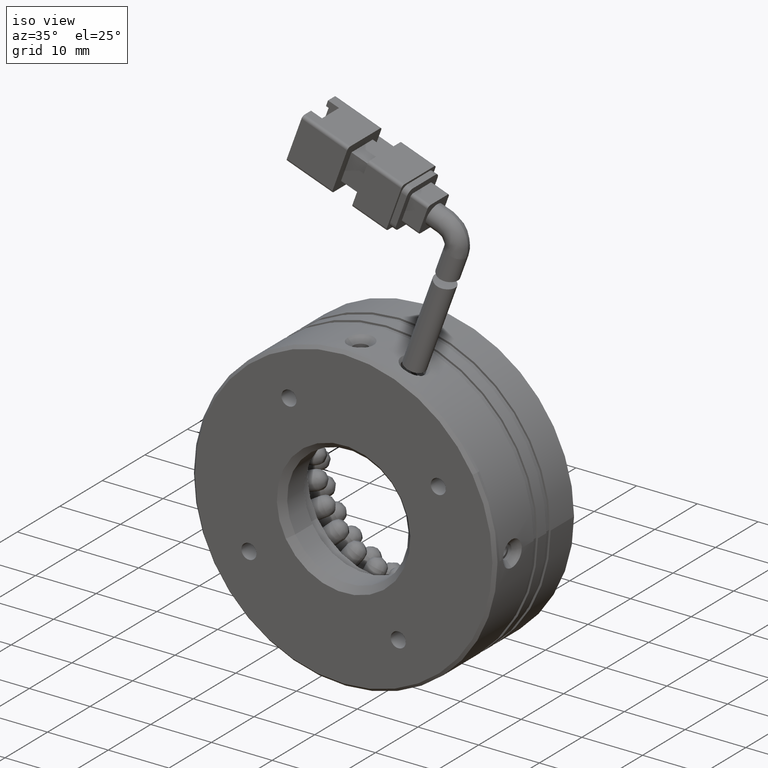
[diagram: clean part render]
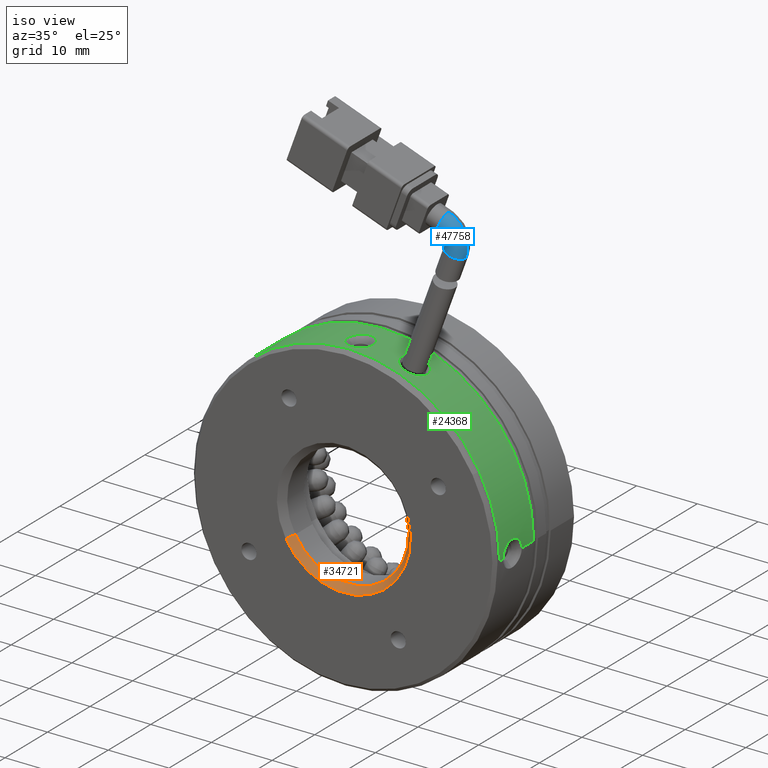
[diagram: same view with three faces highlighted in distinct colors, each labeled with its STEP entity id]
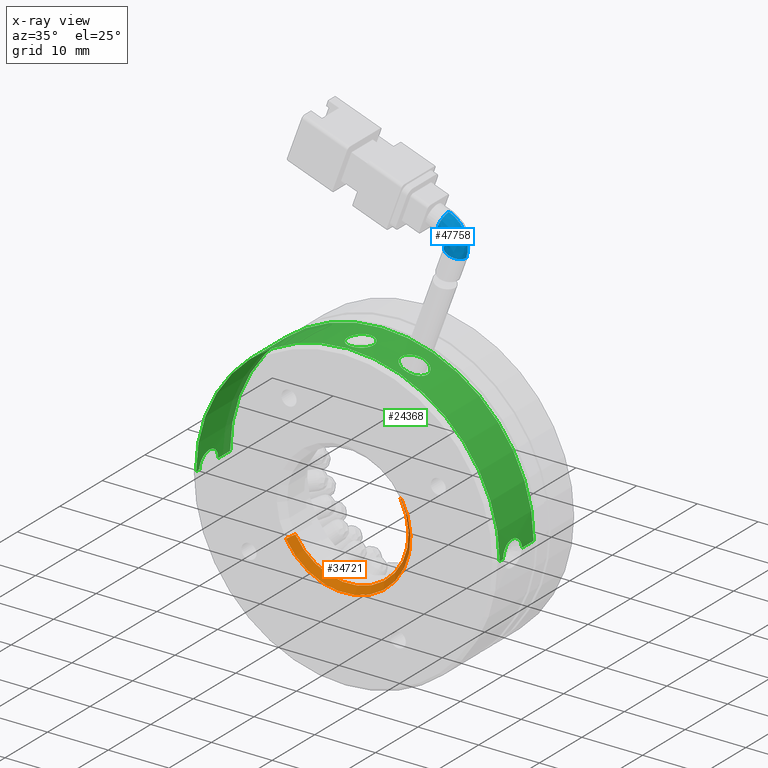
[diagram: x-ray of the same camera — body ghosted, the three highlighted faces saturated]
A machine part, iso view with three faces highlighted in distinct colors.
The next image is the same camera in x-ray (body ghosted, the three faces saturated) — at least one of them is partly hidden behind the body in this view.
Their STEP definitions:

[orange] entity #34721 — the highlighted conical surface has half-angle 45 deg.
#2085 = CONICAL_SURFACE ( 'NONE', #17731, 10.99999999999999600, 0.7853981633974447300 ) ;
#3979 = VECTOR ( 'NONE', #42289, 1000.000000000000100 ) ;
#6963 = DIRECTION ( 'NONE',  ( 1.337821311134206300E-016, -1.000000000000000000, 1.129945806975177200E-016 ) ) ;
#7641 = EDGE_CURVE ( 'NONE', #18842, #27068, #15041, .T. ) ;
#10564 = CARTESIAN_POINT ( 'NONE',  ( -103.2526317301170500, 2.127531206657415900, -5.500000000000015100 ) ) ;
#10644 = CARTESIAN_POINT ( 'NONE',  ( -102.3866063263326300, 3.127531206657413200, -5.000000000000020400 ) ) ;
#11988 = ORIENTED_EDGE ( 'NONE', *, *, #48102, .T. ) ;
#12030 = CARTESIAN_POINT ( 'NONE',  ( -84.20007284685941300, 2.127531206657418600, 5.500000000000005300 ) ) ;
#14493 = CARTESIAN_POINT ( 'NONE',  ( -84.20007284685941300, 2.127531206657422100, 5.500000000000003600 ) ) ;
#15041 = CIRCLE ( 'NONE', #48895, 10.00000000000000900 ) ;
#15258 = DIRECTION ( 'NONE',  ( 1.193513842782216900E-016, -1.000000000000000000, 5.913830031739125400E-017 ) ) ;
#15487 = EDGE_CURVE ( 'NONE', #38138, #45460, #28268, .T. ) ;
#16470 = DIRECTION ( 'NONE',  ( -0.6123724356957919200, -0.7071067811865501300, -0.3535533905932731200 ) ) ;
#17731 = AXIS2_PLACEMENT_3D ( 'NONE', #22787, #6963, #50255 ) ;
#18842 = VERTEX_POINT ( 'NONE', #10644 ) ;
#19337 = CARTESIAN_POINT ( 'NONE',  ( -85.06609825064384700, 3.127531206657415900, 5.000000000000009800 ) ) ;
#22097 = ORIENTED_EDGE ( 'NONE', *, *, #15487, .T. ) ;
#22787 = CARTESIAN_POINT ( 'NONE',  ( -93.72635228848822900, 2.127531206657420300, -6.071532165918824800E-015 ) ) ;
#23386 = DIRECTION ( 'NONE',  ( 0.8660254037844379300, 1.182766006347823100E-016, 0.5000000000000010000 ) ) ;
#23718 = CARTESIAN_POINT ( 'NONE',  ( -93.72635228848822900, 2.127531206657417200, -6.071532165918824800E-015 ) ) ;
#24117 = CARTESIAN_POINT ( 'NONE',  ( -93.72635228848822900, 3.127531206657414600, -6.132764505876192400E-015 ) ) ;
#26673 = FACE_OUTER_BOUND ( 'NONE', #42869, .T. ) ;
#27068 = VERTEX_POINT ( 'NONE', #19337 ) ;
#27166 = DIRECTION ( 'NONE',  ( 0.8660254037844379300, 2.602085213965208200E-016, 0.5000000000000011100 ) ) ;
#27635 = EDGE_CURVE ( 'NONE', #27068, #45460, #45810, .T. ) ;
#28268 = CIRCLE ( 'NONE', #34228, 10.99999999999999800 ) ;
#34228 = AXIS2_PLACEMENT_3D ( 'NONE', #23718, #15258, #23386 ) ;
#34556 = VECTOR ( 'NONE', #16470, 1000.000000000000000 ) ;
#34721 = ADVANCED_FACE ( 'NONE', ( #26673 ), #2085, .F. ) ;
#38138 = VERTEX_POINT ( 'NONE', #10564 ) ;
#41051 = ORIENTED_EDGE ( 'NONE', *, *, #27635, .F. ) ;
#42289 = DIRECTION ( 'NONE',  ( 0.6123724356957920300, -0.7071067811865500200, 0.3535533905932732900 ) ) ;
#42869 = EDGE_LOOP ( 'NONE', ( #49453, #11988, #22097, #41051 ) ) ;
#45006 = LINE ( 'NONE', #45845, #34556 ) ;
#45460 = VERTEX_POINT ( 'NONE', #12030 ) ;
#45810 = LINE ( 'NONE', #14493, #3979 ) ;
#45845 = CARTESIAN_POINT ( 'NONE',  ( -103.2526317301170500, 2.127531206657419000, -5.500000000000013300 ) ) ;
#46577 = DIRECTION ( 'NONE',  ( 1.229783673277243400E-016, -1.000000000000000000, 6.123233995736773400E-017 ) ) ;
#48102 = EDGE_CURVE ( 'NONE', #18842, #38138, #45006, .T. ) ;
#48895 = AXIS2_PLACEMENT_3D ( 'NONE', #24117, #46577, #27166 ) ;
#49453 = ORIENTED_EDGE ( 'NONE', *, *, #7641, .F. ) ;
#50255 = DIRECTION ( 'NONE',  ( 0.8660254037844380400, 1.577021341797097800E-016, 0.5000000000000010000 ) ) ;

[blue] entity #47758 — the highlighted face is a freeform B-spline surface patch.
#356 = CARTESIAN_POINT ( 'NONE',  ( -75.73931763601976300, 6.627531206657415000, 44.30231385031966300 ) ) ;
#538 = CARTESIAN_POINT ( 'NONE',  ( -79.97990792520850800, 6.627531206657412400, 42.88470318618579600 ) ) ;
#1962 = FACE_OUTER_BOUND ( 'NONE', #17838, .T. ) ;
#3110 = ORIENTED_EDGE ( 'NONE', *, *, #50770, .F. ) ;
#4115 = CARTESIAN_POINT ( 'NONE',  ( -79.52992802039396700, 6.627531206657415900, 47.77576831407594000 ) ) ;
#4288 = CARTESIAN_POINT ( 'NONE',  ( -79.52992802039396700, 3.127531206657413700, 47.77576831407595400 ) ) ;
#4488 = DIRECTION ( 'NONE',  ( 1.050341619794772700E-016, 1.000000000000000000, -3.251469816159421900E-016 ) ) ;
#4837 = CARTESIAN_POINT ( 'NONE',  ( -79.97990792520850800, 6.627531206657412400, 42.88470318618579600 ) ) ;
#6942 = AXIS2_PLACEMENT_3D ( 'NONE', #44476, #20857, #48366 ) ;
#7364 = VERTEX_POINT ( 'NONE', #4837 ) ;
#8209 = CARTESIAN_POINT ( 'NONE',  ( -75.73931763601976300, 3.127531206657411900, 44.30231385031967100 ) ) ;
#11381 = EDGE_CURVE ( 'NONE', #18551, #22056, #25127, .T. ) ;
#11509 = DIRECTION ( 'NONE',  ( 0.9396926207859074300, 0.0000000000000000000, -0.3420201433256714900 ) ) ;
#11678 = DIRECTION ( 'NONE',  ( 0.3420201433256694300, 2.696144201609998500E-016, 0.9396926207859083200 ) ) ;
#11733 = CARTESIAN_POINT ( 'NONE',  ( -78.33544583883316600, 6.627531206657413200, 42.28616793536588100 ) ) ;
#11986 = AXIS2_PLACEMENT_3D ( 'NONE', #16204, #22036, #49511 ) ;
#12145 = CARTESIAN_POINT ( 'NONE',  ( -80.72699852203379600, 3.127531206657411000, 44.48684414132526400 ) ) ;
#12898 = CIRCLE ( 'NONE', #29293, 4.749999999999990200 ) ;
#12991 =( BOUNDED_SURFACE ( )  B_SPLINE_SURFACE ( 3, 3, ( 
 ( #4115, #23872, #356, #27853 ),
 ( #4288, #31819, #8209, #35798 ),
 ( #12145, #39743, #16098, #43701 ),
 ( #20068, #47594, #24051, #538 ) ),
 .UNSPECIFIED., .F., .F., .F. ) 
 B_SPLINE_SURFACE_WITH_KNOTS ( ( 4, 4 ),
 ( 4, 4 ),
 ( 0.0000000000000000000, 1.000000000000000000 ),
 ( 0.0000000000000000000, 1.000000000000000000 ),
 .UNSPECIFIED. ) 
 GEOMETRIC_REPRESENTATION_ITEM ( )  RATIONAL_B_SPLINE_SURFACE ( (
 ( 1.000000000000000000, 0.8047378541243640500, 0.8047378541243640500, 1.000000000000000000),
 ( 0.3333333333333330400, 0.2682459513747877900, 0.2682459513747877900, 0.3333333333333330400),
 ( 0.3333333333333330400, 0.2682459513747877900, 0.2682459513747877900, 0.3333333333333330400),
 ( 1.000000000000000000, 0.8047378541243640500, 0.8047378541243640500, 1.000000000000000000) ) ) 
 REPRESENTATION_ITEM ( '' )  SURFACE ( )  );
#14442 = EDGE_CURVE ( 'NONE', #7364, #48800, #40266, .T. ) ;
#16098 = CARTESIAN_POINT ( 'NONE',  ( -79.72946947351427100, 3.127531206657410100, 43.57277717717888500 ) ) ;
#16204 = CARTESIAN_POINT ( 'NONE',  ( -80.12846327121388900, 6.627531206657396400, 46.13130622770058400 ) ) ;
#16984 = DIRECTION ( 'NONE',  ( 1.050341619794772700E-016, 1.000000000000000000, -3.251469816159421900E-016 ) ) ;
#17340 = AXIS2_PLACEMENT_3D ( 'NONE', #11733, #11678, #11509 ) ;
#17838 = EDGE_LOOP ( 'NONE', ( #37360, #43868, #45073, #50772, #3110 ) ) ;
#18551 = VERTEX_POINT ( 'NONE', #24105 ) ;
#20068 = CARTESIAN_POINT ( 'NONE',  ( -80.72699852203379600, 6.627531206657413200, 44.48684414132527100 ) ) ;
#20857 = DIRECTION ( 'NONE',  ( 0.3420201433256694300, 2.696144201609998500E-016, 0.9396926207859083200 ) ) ;
#22036 = DIRECTION ( 'NONE',  ( -0.9396926207859080900, -1.543954929654824700E-016, 0.3420201433256696000 ) ) ;
#22056 = VERTEX_POINT ( 'NONE', #35379 ) ;
#23872 = CARTESIAN_POINT ( 'NONE',  ( -76.91524685462025000, 6.627531206657415000, 46.82410219763784900 ) ) ;
#24051 = CARTESIAN_POINT ( 'NONE',  ( -79.72946947351427100, 6.627531206657413200, 43.57277717717888500 ) ) ;
#24105 = CARTESIAN_POINT ( 'NONE',  ( -80.72699852203379600, 6.627531206657413200, 44.48684414132525700 ) ) ;
#25127 = CIRCLE ( 'NONE', #11986, 1.749999999999996200 ) ;
#26294 = CIRCLE ( 'NONE', #45314, 1.249999999999993300 ) ;
#26644 = EDGE_CURVE ( 'NONE', #18551, #7364, #26294, .T. ) ;
#27620 = CARTESIAN_POINT ( 'NONE',  ( -76.69098375245783900, 6.627531206657413200, 41.68763268454596000 ) ) ;
#27853 = CARTESIAN_POINT ( 'NONE',  ( -76.69098375245785300, 6.627531206657413200, 41.68763268454595300 ) ) ;
#28057 = CARTESIAN_POINT ( 'NONE',  ( -81.15452370119088200, 6.627531206657414100, 43.31222836534288900 ) ) ;
#28923 = CIRCLE ( 'NONE', #6942, 1.749999999999998700 ) ;
#28963 = VERTEX_POINT ( 'NONE', #27620 ) ;
#29293 = AXIS2_PLACEMENT_3D ( 'NONE', #28057, #4488, #32012 ) ;
#31819 = CARTESIAN_POINT ( 'NONE',  ( -76.91524685462026400, 3.127531206657413200, 46.82410219763785600 ) ) ;
#32012 = DIRECTION ( 'NONE',  ( 0.9396926207859077600, -1.826024711554537600E-016, -0.3420201433256706600 ) ) ;
#34523 = CARTESIAN_POINT ( 'NONE',  ( -78.33544583883315200, 4.877531206657419500, 42.28616793536587400 ) ) ;
#35379 = CARTESIAN_POINT ( 'NONE',  ( -79.52992802039395300, 6.627531206657415900, 47.77576831407592600 ) ) ;
#35798 = CARTESIAN_POINT ( 'NONE',  ( -76.69098375245783900, 3.127531206657411000, 41.68763268454594600 ) ) ;
#37360 = ORIENTED_EDGE ( 'NONE', *, *, #11381, .F. ) ;
#37653 = EDGE_CURVE ( 'NONE', #48800, #28963, #28923, .T. ) ;
#39743 = CARTESIAN_POINT ( 'NONE',  ( -80.03892453104072000, 3.127531206657410600, 44.23640568963104200 ) ) ;
#40266 = CIRCLE ( 'NONE', #17340, 1.749999999999998700 ) ;
#40622 = CARTESIAN_POINT ( 'NONE',  ( -81.15452370119088200, 6.627531206657413200, 43.31222836534288900 ) ) ;
#43701 = CARTESIAN_POINT ( 'NONE',  ( -79.97990792520850800, 3.127531206657410100, 42.88470318618579600 ) ) ;
#43868 = ORIENTED_EDGE ( 'NONE', *, *, #26644, .T. ) ;
#44476 = CARTESIAN_POINT ( 'NONE',  ( -78.33544583883316600, 6.627531206657413200, 42.28616793536588100 ) ) ;
#44574 = DIRECTION ( 'NONE',  ( 0.9396926207859085400, 0.0000000000000000000, -0.3420201433256682700 ) ) ;
#45073 = ORIENTED_EDGE ( 'NONE', *, *, #14442, .T. ) ;
#45314 = AXIS2_PLACEMENT_3D ( 'NONE', #40622, #16984, #44574 ) ;
#47594 = CARTESIAN_POINT ( 'NONE',  ( -80.03892453104070600, 6.627531206657414100, 44.23640568963102700 ) ) ;
#47758 = ADVANCED_FACE ( 'NONE', ( #1962 ), #12991, .T. ) ;
#48366 = DIRECTION ( 'NONE',  ( 0.9396926207859074300, 0.0000000000000000000, -0.3420201433256714900 ) ) ;
#48800 = VERTEX_POINT ( 'NONE', #34523 ) ;
#49511 = DIRECTION ( 'NONE',  ( 0.3420201433256679900, 0.0000000000000000000, 0.9396926207859087600 ) ) ;
#50770 = EDGE_CURVE ( 'NONE', #22056, #28963, #12898, .T. ) ;
#50772 = ORIENTED_EDGE ( 'NONE', *, *, #37653, .T. ) ;

[green] entity #24368 — the highlighted cylindrical surface (partial cylindrical patch) has radius 25 mm, axis along (-0, 1, -0).
#109 = FACE_BOUND ( 'NONE', #17206, .T. ) ;
#582 = B_SPLINE_CURVE_WITH_KNOTS ( 'NONE', 3,
 ( #45241, #9800, #2115, #29606, #6028, #33574, #9970, #37576, #13890, #41527, #17882, #45401, #21846, #49323, #25806, #2276 ),
 .UNSPECIFIED., .F., .F.,
 ( 4, 2, 2, 2, 2, 2, 2, 4 ),
 ( 0.003372809311427478000, 0.003794751688006890000, 0.004216694064586302400, 0.004638636441165714000, 0.005060578817745126400, 0.005482521194324538800, 0.005904463570903950400, 0.006748348324062772600 ),
 .UNSPECIFIED. ) ;
#660 = VERTEX_POINT ( 'NONE', #46981 ) ;
#808 = ORIENTED_EDGE ( 'NONE', *, *, #48741, .F. ) ;
#935 = CARTESIAN_POINT ( 'NONE',  ( -68.72635228848821500, 24.01734612509121900, 3.061616997868385400E-015 ) ) ;
#1002 = CARTESIAN_POINT ( 'NONE',  ( -95.41755569517926000, 4.804040368719905800, 24.94284510514802000 ) ) ;
#1161 = CARTESIAN_POINT ( 'NONE',  ( -94.42076301022818500, 4.045050435432641800, 24.99068650074069700 ) ) ;
#1268 = CARTESIAN_POINT ( 'NONE',  ( -118.6924803183910900, 7.871436744697787100, 1.315120900708605500 ) ) ;
#1381 = CARTESIAN_POINT ( 'NONE',  ( -87.33680741832448300, 6.629950924454618600, 24.16968589684535100 ) ) ;
#1851 = CARTESIAN_POINT ( 'NONE',  ( -92.31538171877463100, 4.485464639422760400, 24.96034158929078100 ) ) ;
#2028 = CARTESIAN_POINT ( 'NONE',  ( -93.58354791311232600, 3.927551101122267200, 24.99999839088628000 ) ) ;
#2115 = CARTESIAN_POINT ( 'NONE',  ( -118.6382132408280900, 5.845050098752269100, 2.097583008050207800 ) ) ;
#2245 = CARTESIAN_POINT ( 'NONE',  ( -91.61561581704414400, 6.127531206657373300, 24.91073647141161700 ) ) ;
#2276 = CARTESIAN_POINT ( 'NONE',  ( -118.7263522884882400, 3.927531206675423100, 3.188767033409472800E-028 ) ) ;
#2313 = CARTESIAN_POINT ( 'NONE',  ( -68.79411095219799700, 5.042451283368322400, 1.840933599726173100 ) ) ;
#2386 = CARTESIAN_POINT ( 'NONE',  ( -118.7263522884882600, 24.01734612509121200, 0.0000000000000000000 ) ) ;
#2484 = ORIENTED_EDGE ( 'NONE', *, *, #38600, .T. ) ;
#2644 = CARTESIAN_POINT ( 'NONE',  ( -94.28694921743560500, 8.253471317761080800, 24.99409371080713200 ) ) ;
#2802 = CARTESIAN_POINT ( 'NONE',  ( -91.71950165400402000, 6.823284365005923400, 24.91937348563566700 ) ) ;
#3002 = CARTESIAN_POINT ( 'NONE',  ( -68.81561581707664700, 6.269895215091832300, 2.110736471444481400 ) ) ;
#3113 = CARTESIAN_POINT ( 'NONE',  ( -87.04164505155772200, 7.749920134018435800, 24.08986700135214700 ) ) ;
#3295 = CARTESIAN_POINT ( 'NONE',  ( -84.11996627386311300, 8.571423713469167500, 23.08229325377325500 ) ) ;
#3512 = CARTESIAN_POINT ( 'NONE',  ( -68.81449133615224400, 6.410012314569372400, 2.097583008096889600 ) ) ;
#3677 = CARTESIAN_POINT ( 'NONE',  ( -68.72635228848821500, 8.327531206695757900, 3.061616997868413400E-015 ) ) ;
#3925 = ORIENTED_EDGE ( 'NONE', *, *, #40596, .T. ) ;
#4146 = CARTESIAN_POINT ( 'NONE',  ( -91.68070329506356600, 5.567842280065710800, 24.91617939211820600 ) ) ;
#4227 = CARTESIAN_POINT ( 'NONE',  ( -93.16536899108027100, 4.001703644451781700, 24.99408488482686500 ) ) ;
#4345 = VECTOR ( 'NONE', #9609, 1000.000000000000000 ) ;
#4646 = EDGE_CURVE ( 'NONE', #660, #49710, #45948, .T. ) ;
#4863 = CARTESIAN_POINT ( 'NONE',  ( -91.61561581704414400, 6.127531206657373300, 24.91073647141161700 ) ) ;
#5029 = EDGE_CURVE ( 'NONE', #34121, #18861, #39786, .T. ) ;
#5256 = CARTESIAN_POINT ( 'NONE',  ( -95.56805473143126100, 5.043854783285665300, 24.93218448138607000 ) ) ;
#5589 = LINE ( 'NONE', #5682, #4345 ) ;
#5645 = DIRECTION ( 'NONE',  ( -1.224646799147351700E-016, 1.000000000000000000, -0.0000000000000000000 ) ) ;
#5682 = CARTESIAN_POINT ( 'NONE',  ( -118.7263522884882600, 24.01734612509121200, 0.0000000000000000000 ) ) ;
#6028 = CARTESIAN_POINT ( 'NONE',  ( -118.6457112575120900, 5.432193008407319100, 2.007039503046805300 ) ) ;
#6235 = CARTESIAN_POINT ( 'NONE',  ( -68.80692750573577100, 5.429814075974595900, 2.006215502764190800 ) ) ;
#6407 = B_SPLINE_CURVE_WITH_KNOTS ( 'NONE', 3,
 ( #30483, #14755, #46273, #22727, #50204, #26696, #3113, #30656, #7065, #34609, #11019, #38617, #14936, #42549, #18915, #46437, #22901, #50359, #26862, #3295, #30819, #7240, #34787, #11189, #38775, #15092, #42721, #19073, #46600, #23056 ),
 .UNSPECIFIED., .F., .F.,
 ( 4, 2, 2, 2, 2, 2, 2, 2, 2, 2, 2, 2, 2, 2, 4 ),
 ( 1.734723475976807100E-018, 0.0004389873591135950400, 0.0008779747182271883400, 0.001316962077340781600, 0.001755949436454377300, 0.002633924154681541200, 0.003072911513795102600, 0.003511898872908664900, 0.003950886232022226800, 0.004389873591135789500, 0.005267848309362945300, 0.005706835668476525400, 0.006145823027590102900, 0.006584810386703681200, 0.007023797745817257800 ),
 .UNSPECIFIED. ) ;
#6570 = CARTESIAN_POINT ( 'NONE',  ( -93.86864455055138000, 8.327545891568814100, 25.00000118774757500 ) ) ;
#6600 = CARTESIAN_POINT ( 'NONE',  ( -68.72635228848821500, 24.01734612509121900, 3.061616997868385400E-015 ) ) ;
#6741 = CARTESIAN_POINT ( 'NONE',  ( -91.62855500295367500, 6.408519929583411200, 24.91184293559467000 ) ) ;
#6767 = VERTEX_POINT ( 'NONE', #38476 ) ;
#7065 = CARTESIAN_POINT ( 'NONE',  ( -86.78828577320274500, 8.105066516053126300, 24.01820643902865300 ) ) ;
#7240 = CARTESIAN_POINT ( 'NONE',  ( -83.60042557912824200, 8.102561220144282900, 22.85775158034288500 ) ) ;
#7451 = CARTESIAN_POINT ( 'NONE',  ( -68.80699331946800600, 6.822869404924259300, 2.007039503091733800 ) ) ;
#7504 = ORIENTED_EDGE ( 'NONE', *, *, #28109, .T. ) ;
#8634 = CARTESIAN_POINT ( 'NONE',  ( -118.7263522884882400, 8.327531206639418900, 3.192939869231462800E-028 ) ) ;
#9276 = ORIENTED_EDGE ( 'NONE', *, *, #41670, .T. ) ;
#9609 = DIRECTION ( 'NONE',  ( -1.224646799147351700E-016, 1.000000000000000000, -0.0000000000000000000 ) ) ;
#9800 = CARTESIAN_POINT ( 'NONE',  ( -118.6370887599037600, 5.985167198227618000, 2.110736471397629100 ) ) ;
#9970 = CARTESIAN_POINT ( 'NONE',  ( -118.6585734488815100, 5.043048222521497000, 1.841179615182169500 ) ) ;
#10176 = CARTESIAN_POINT ( 'NONE',  ( -68.81449279918466300, 5.844831605414477800, 2.097602845475807300 ) ) ;
#10201 = CARTESIAN_POINT ( 'NONE',  ( -95.83708875993232800, 6.127531206657471900, 24.91073647141161700 ) ) ;
#10258 = EDGE_CURVE ( 'NONE', #17682, #31354, #34462, .T. ) ;
#10337 = CARTESIAN_POINT ( 'NONE',  ( -95.77198279765259800, 6.687298464014045200, 24.91618091737486300 ) ) ;
#10499 = CARTESIAN_POINT ( 'NONE',  ( -93.44359130388576800, 8.312592236049319200, 24.99878025384049700 ) ) ;
#10680 = CARTESIAN_POINT ( 'NONE',  ( -91.61561581704414400, 6.127531206657373300, 24.91073647141161700 ) ) ;
#10785 = ORIENTED_EDGE ( 'NONE', *, *, #10258, .T. ) ;
#11019 = CARTESIAN_POINT ( 'NONE',  ( -86.24490691949083000, 8.572998441941823700, 23.85584937046340300 ) ) ;
#11189 = CARTESIAN_POINT ( 'NONE',  ( -83.36297287557536600, 7.750701235911666500, 22.75098367767485300 ) ) ;
#11400 = CARTESIAN_POINT ( 'NONE',  ( -68.79413112809801600, 7.212014190819735900, 1.841179615223758500 ) ) ;
#12619 = CARTESIAN_POINT ( 'NONE',  ( -94.28413246639993900, 4.000791936447630100, 24.99415643645258500 ) ) ;
#12971 = CARTESIAN_POINT ( 'NONE',  ( -95.04219169490599500, 4.384176510076571300, 24.96609059186189200 ) ) ;
#13890 = CARTESIAN_POINT ( 'NONE',  ( -118.6749917680693300, 4.691654593888513200, 1.604594212436151000 ) ) ;
#13931 = CARTESIAN_POINT ( 'NONE',  ( -68.72756803637031500, 3.942421126342650500, 0.2823635816201177700 ) ) ;
#14093 = CARTESIAN_POINT ( 'NONE',  ( -68.81561581707664700, 6.127531206657424800, 2.110736471444564900 ) ) ;
#14262 = CARTESIAN_POINT ( 'NONE',  ( -95.57917640679110600, 7.218612631283259700, 24.93146004079121900 ) ) ;
#14438 = CARTESIAN_POINT ( 'NONE',  ( -93.03157885068502300, 8.209878733593265900, 24.99067626400632800 ) ) ;
#14755 = CARTESIAN_POINT ( 'NONE',  ( -87.33664801069824100, 6.778042392264585400, 24.16964375553723300 ) ) ;
#14936 = CARTESIAN_POINT ( 'NONE',  ( -85.72240214135408100, 8.778617706307708000, 23.68454116551253500 ) ) ;
#15092 = CARTESIAN_POINT ( 'NONE',  ( -83.19254770072755900, 7.350794394039612100, 22.67250074578843000 ) ) ;
#15180 = VERTEX_POINT ( 'NONE', #34682 ) ;
#15320 = CARTESIAN_POINT ( 'NONE',  ( -68.77771280890948400, 7.563407819461589900, 1.604594212472916700 ) ) ;
#16861 = CARTESIAN_POINT ( 'NONE',  ( -118.6585936247815700, 7.212611129920238000, 1.840933599684530000 ) ) ;
#17206 = EDGE_LOOP ( 'NONE', ( #25246, #17723 ) ) ;
#17297 = CARTESIAN_POINT ( 'NONE',  ( -83.15214845473639100, 6.046269434473349400, 22.65363295083733400 ) ) ;
#17399 = CARTESIAN_POINT ( 'NONE',  ( -83.09864368369765900, 6.333471411789538800, 22.62858109561124600 ) ) ;
#17682 = VERTEX_POINT ( 'NONE', #8634 ) ;
#17723 = ORIENTED_EDGE ( 'NONE', *, *, #36218, .T. ) ;
#17882 = CARTESIAN_POINT ( 'NONE',  ( -118.6924642036615600, 4.393918717303527000, 1.306300267451909100 ) ) ;
#17929 = CARTESIAN_POINT ( 'NONE',  ( -68.73565804171698800, 4.044951313940473800, 0.6941144659934298500 ) ) ;
#18262 = CARTESIAN_POINT ( 'NONE',  ( -95.13713167769839200, 7.769777895890481300, 24.96035248869997500 ) ) ;
#18415 = CARTESIAN_POINT ( 'NONE',  ( -92.41029706054646900, 7.870701904189262500, 24.96607882722543400 ) ) ;
#18440 = DIRECTION ( 'NONE',  ( -1.224646799147351700E-016, 1.000000000000000000, -0.0000000000000000000 ) ) ;
#18861 = VERTEX_POINT ( 'NONE', #10201 ) ;
#18915 = CARTESIAN_POINT ( 'NONE',  ( -85.31332034916481200, 8.847860074847725200, 23.54235349820583800 ) ) ;
#19073 = CARTESIAN_POINT ( 'NONE',  ( -83.09896418590717800, 6.924219570094661200, 22.62873189338169800 ) ) ;
#19082 = CARTESIAN_POINT ( 'NONE',  ( -83.08505199202423300, 6.479331727348905700, 22.62217337040090800 ) ) ;
#19187 = CARTESIAN_POINT ( 'NONE',  ( -86.79158323049536200, 5.153648217032443100, 24.01916263158314600 ) ) ;
#19253 = CARTESIAN_POINT ( 'NONE',  ( -86.48698994735080700, 4.845372392167083000, 23.92982270168879200 ) ) ;
#19295 = CARTESIAN_POINT ( 'NONE',  ( -68.76024037331647800, 7.861143696054492500, 1.306300267482225700 ) ) ;
#19361 = VERTEX_POINT ( 'NONE', #43264 ) ;
#19418 = CARTESIAN_POINT ( 'NONE',  ( -87.04204840703288000, 5.505984780709204600, 24.08997649966892100 ) ) ;
#19578 = CARTESIAN_POINT ( 'NONE',  ( -86.88227329017502100, 5.265265470101634400, 24.04507161143604300 ) ) ;
#19742 = CARTESIAN_POINT ( 'NONE',  ( -84.50022041854650500, 4.518637008608192400, 23.23568183060121900 ) ) ;
#20105 = CARTESIAN_POINT ( 'NONE',  ( -91.61561581704420100, 5.986349301309314100, 24.91073647141161700 ) ) ;
#20309 = CARTESIAN_POINT ( 'NONE',  ( -84.12262682616180600, 4.682392505180438900, 23.08337355982010700 ) ) ;
#20371 = CARTESIAN_POINT ( 'NONE',  ( -118.7263522884882400, 8.327531206639418900, 3.192939869231462800E-028 ) ) ;
#20392 = CARTESIAN_POINT ( 'NONE',  ( -83.89022532542077200, 4.845823466234396200, 22.98466133646030200 ) ) ;
#20477 = DIRECTION ( 'NONE',  ( -1.224646799147351700E-016, 1.000000000000000000, -0.0000000000000000000 ) ) ;
#20497 = CARTESIAN_POINT ( 'NONE',  ( -83.60184175914921000, 5.150918042863992200, 22.85837481400728400 ) ) ;
#20546 = CARTESIAN_POINT ( 'NONE',  ( -95.82414589639772400, 5.846502377881627400, 24.91184325304865900 ) ) ;
#20626 = EDGE_LOOP ( 'NONE', ( #48171, #9276, #2484, #32760, #33545, #39058, #808, #10785, #3925, #43730 ) ) ;
#20799 = CARTESIAN_POINT ( 'NONE',  ( -84.90223061649547300, 4.421050047055874900, 23.39135760749348600 ) ) ;
#20833 = CARTESIAN_POINT ( 'NONE',  ( -84.63336953714160400, 4.476503484211274800, 23.28816005371588800 ) ) ;
#20903 = CARTESIAN_POINT ( 'NONE',  ( -85.31430990603536200, 4.407261132010443600, 23.54270787747650200 ) ) ;
#20997 = FACE_OUTER_BOUND ( 'NONE', #20626, .T. ) ;
#21078 = CARTESIAN_POINT ( 'NONE',  ( -85.03840751936765200, 4.407192542060161400, 23.44229440428320300 ) ) ;
#21185 = CARTESIAN_POINT ( 'NONE',  ( -87.22281711433801400, 5.906331262598176800, 24.13933197386658600 ) ) ;
#21352 = CARTESIAN_POINT ( 'NONE',  ( -87.11165026619258400, 5.636688812678771800, 24.10910689059601700 ) ) ;
#21419 = CARTESIAN_POINT ( 'NONE',  ( -87.32228527316317500, 6.333404769372408300, 24.16586027619340600 ) ) ;
#21604 = CARTESIAN_POINT ( 'NONE',  ( -87.26504379565439300, 6.045648733099382900, 24.15061841414646400 ) ) ;
#21693 = ORIENTED_EDGE ( 'NONE', *, *, #5029, .T. ) ;
#21705 = CARTESIAN_POINT ( 'NONE',  ( -83.51423750948360700, 5.263910532980309800, 22.81928377081307600 ) ) ;
#21770 = CARTESIAN_POINT ( 'NONE',  ( -83.36173132031292700, 5.506490377017349200, 22.75042048531231500 ) ) ;
#21846 = CARTESIAN_POINT ( 'NONE',  ( -118.7085329280896700, 4.159167402466786200, 0.9524527138401175400 ) ) ;
#21869 = CARTESIAN_POINT ( 'NONE',  ( -83.29750428043200800, 5.634475814152168000, 22.72096961472538000 ) ) ;
#21890 = CARTESIAN_POINT ( 'NONE',  ( -68.76022425858694500, 4.383625668573731800, 1.315120900739229500 ) ) ;
#21921 = CARTESIAN_POINT ( 'NONE',  ( -92.64948257860783100, 4.230279839631365700, 24.97705779155072400 ) ) ;
#21944 = CARTESIAN_POINT ( 'NONE',  ( -83.19270894327858900, 5.903770515322413800, 22.67257570026687900 ) ) ;
#21983 = CARTESIAN_POINT ( 'NONE',  ( -118.7263522884882400, 3.927531206675423100, 3.188767033409472800E-028 ) ) ;
#22229 = CARTESIAN_POINT ( 'NONE',  ( -94.80294782571417000, 8.024953412684633100, 24.97706974139681800 ) ) ;
#22404 = CARTESIAN_POINT ( 'NONE',  ( -92.03503029489624500, 7.450855044804284500, 24.94283699925345800 ) ) ;
#22473 = VERTEX_POINT ( 'NONE', #50237 ) ;
#22727 = CARTESIAN_POINT ( 'NONE',  ( -87.26467088699743600, 7.210715803180141500, 24.15051868271291000 ) ) ;
#22901 = CARTESIAN_POINT ( 'NONE',  ( -84.89882246572617000, 8.833508304942432300, 23.39006787153558500 ) ) ;
#23056 = CARTESIAN_POINT ( 'NONE',  ( -83.08505178513435400, 6.627531206657422100, 22.62217327308146200 ) ) ;
#23281 = CARTESIAN_POINT ( 'NONE',  ( -68.74417164888763000, 8.095895010897667300, 0.9524527138625669100 ) ) ;
#23516 = CARTESIAN_POINT ( 'NONE',  ( -93.72635228848822900, 11.12753120665742100, 0.0000000000000000000 ) ) ;
#23904 = CARTESIAN_POINT ( 'NONE',  ( -85.72545806519509900, 4.477301606803441900, 23.68557105872243400 ) ) ;
#24015 = CARTESIAN_POINT ( 'NONE',  ( -85.45413319482719300, 4.421602602799162600, 23.59218039979739600 ) ) ;
#24083 = CARTESIAN_POINT ( 'NONE',  ( -86.24920391961778400, 4.684151611941949500, 23.85722717729795400 ) ) ;
#24179 = CARTESIAN_POINT ( 'NONE',  ( -92.02366102004438600, 4.796129873016677300, 24.94271042318918700 ) ) ;
#24199 = CARTESIAN_POINT ( 'NONE',  ( -85.85848821572328400, 4.518585589804635200, 23.73005423534304700 ) ) ;
#24315 = CARTESIAN_POINT ( 'NONE',  ( -87.33680741832448300, 6.629950924454618600, 24.16968589684535100 ) ) ;
#24361 = CARTESIAN_POINT ( 'NONE',  ( -118.7263522884882300, 8.327531206639431400, 0.1424047389252667300 ) ) ;
#24368 = ADVANCED_FACE ( 'NONE', ( #30252, #109, #20997 ), #35807, .T. ) ;
#24385 = CARTESIAN_POINT ( 'NONE',  ( -87.33696693877816100, 6.481754638743327100, 24.16972806798074900 ) ) ;
#25172 = B_SPLINE_CURVE_WITH_KNOTS ( 'NONE', 3,
 ( #30878, #3002, #3512, #31046, #7451, #34998, #11400, #38997, #15320, #42943, #19295, #46819, #23281, #50736, #27246, #3677 ),
 .UNSPECIFIED., .F., .F.,
 ( 4, 2, 2, 2, 2, 2, 2, 4 ),
 ( 0.003372809311508812300, 0.003794751688098414500, 0.004216694064688017100, 0.004638636441277618400, 0.005060578817867221500, 0.005482521194456824500, 0.005904463571046429300, 0.006748348324225638900 ),
 .UNSPECIFIED. ) ;
#25246 = ORIENTED_EDGE ( 'NONE', *, *, #4646, .T. ) ;
#25680 = CARTESIAN_POINT ( 'NONE',  ( -68.72635228848821500, 3.927531206619091300, 3.061616997868413400E-015 ) ) ;
#25806 = CARTESIAN_POINT ( 'NONE',  ( -118.7263522884882100, 3.927531206675408400, 0.2850822124977777100 ) ) ;
#25851 = CARTESIAN_POINT ( 'NONE',  ( -68.78345168282952200, 4.802917715021401100, 1.690385738774615500 ) ) ;
#26036 = CARTESIAN_POINT ( 'NONE',  ( -95.83708875993232800, 6.127531206657471900, 24.91073647141161700 ) ) ;
#26199 = CARTESIAN_POINT ( 'NONE',  ( -94.42040584408962900, 8.210167597723572200, 24.99069812628092200 ) ) ;
#26366 = CARTESIAN_POINT ( 'NONE',  ( -91.82164516464601400, 7.085472786383225400, 24.92738885559649000 ) ) ;
#26641 = AXIS2_PLACEMENT_3D ( 'NONE', #29225, #5645, #33180 ) ;
#26696 = CARTESIAN_POINT ( 'NONE',  ( -87.10981288713267600, 7.622079490759090500, 24.10860313797573100 ) ) ;
#26862 = CARTESIAN_POINT ( 'NONE',  ( -84.50071136166872100, 8.736684375681928600, 23.23588341376730800 ) ) ;
#27024 = CARTESIAN_POINT ( 'NONE',  ( -83.08505178513435400, 6.627531206657422100, 22.62217327308146200 ) ) ;
#27246 = CARTESIAN_POINT ( 'NONE',  ( -68.72635228848820100, 8.327531206695715200, 0.2850822125046012500 ) ) ;
#27469 = DIRECTION ( 'NONE',  ( -1.000000000000000000, -1.387778780781444400E-016, 0.0000000000000000000 ) ) ;
#28109 = EDGE_CURVE ( 'NONE', #18861, #34121, #40135, .T. ) ;
#29225 = CARTESIAN_POINT ( 'NONE',  ( -93.72635228848822900, 3.127531206657421200, 0.0000000000000000000 ) ) ;
#29339 = LINE ( 'NONE', #935, #38616 ) ;
#29493 = CARTESIAN_POINT ( 'NONE',  ( -93.44087615871414700, 3.942848145899794600, 24.99874966611792400 ) ) ;
#29606 = CARTESIAN_POINT ( 'NONE',  ( -118.6425052396313500, 5.569137095856060400, 2.045969867720498500 ) ) ;
#29819 = CARTESIAN_POINT ( 'NONE',  ( -68.79890320965400000, 5.167909696709073400, 1.903920841031486300 ) ) ;
#30059 = VECTOR ( 'NONE', #49452, 1000.000000000000000 ) ;
#30140 = CARTESIAN_POINT ( 'NONE',  ( -94.01138499826964800, 8.312278892411377700, 24.99875488290783600 ) ) ;
#30252 = FACE_BOUND ( 'NONE', #47725, .T. ) ;
#30304 = CARTESIAN_POINT ( 'NONE',  ( -68.72635228848821500, 11.12753120665742500, 3.061616997868385000E-015 ) ) ;
#30315 = CARTESIAN_POINT ( 'NONE',  ( -91.68021867491027900, 6.685394343590583200, 24.91613953112161200 ) ) ;
#30483 = CARTESIAN_POINT ( 'NONE',  ( -87.33680741832448300, 6.629950924454618600, 24.16968589684535100 ) ) ;
#30656 = CARTESIAN_POINT ( 'NONE',  ( -86.88052203803756900, 7.992195778947582600, 24.04457550401589600 ) ) ;
#30819 = CARTESIAN_POINT ( 'NONE',  ( -83.89123659207210400, 8.410477703508377100, 22.98511029701823800 ) ) ;
#30878 = CARTESIAN_POINT ( 'NONE',  ( -68.81561581707664700, 6.127531206657424800, 2.110736471444564900 ) ) ;
#31034 = DIRECTION ( 'NONE',  ( -1.224646799147351700E-016, 1.000000000000000000, -0.0000000000000000000 ) ) ;
#31046 = CARTESIAN_POINT ( 'NONE',  ( -68.81019933734886300, 6.685925317472233500, 2.045969867766170800 ) ) ;
#31354 = VERTEX_POINT ( 'NONE', #34672 ) ;
#32498 = CARTESIAN_POINT ( 'NONE',  ( -118.6692528941495400, 7.452144698261263600, 1.690385738735926900 ) ) ;
#32760 = ORIENTED_EDGE ( 'NONE', *, *, #34765, .T. ) ;
#32797 = VERTEX_POINT ( 'NONE', #47198 ) ;
#33002 = AXIS2_PLACEMENT_3D ( 'NONE', #34658, #31034, #50721 ) ;
#33180 = DIRECTION ( 'NONE',  ( -1.000000000000000000, -1.214306433183764000E-016, 0.0000000000000000000 ) ) ;
#33545 = ORIENTED_EDGE ( 'NONE', *, *, #45551, .T. ) ;
#33574 = CARTESIAN_POINT ( 'NONE',  ( -118.6537786986804300, 5.168421249654742600, 1.904224660673012700 ) ) ;
#33618 = CARTESIAN_POINT ( 'NONE',  ( -68.72635228848821500, 3.927531206619120100, 0.1424047389286857700 ) ) ;
#33776 = CARTESIAN_POINT ( 'NONE',  ( -68.81016824767459600, 5.567453178641184900, 2.045593741791984500 ) ) ;
#33800 = CARTESIAN_POINT ( 'NONE',  ( -95.83708875993232800, 5.986329053172498000, 24.91073647141161700 ) ) ;
#33914 = LINE ( 'NONE', #6600, #43143 ) ;
#33948 = CARTESIAN_POINT ( 'NONE',  ( -95.82379198990200600, 6.411215299650114800, 24.91187312078946200 ) ) ;
#34118 = CARTESIAN_POINT ( 'NONE',  ( -93.58364297005877600, 8.327516500306117600, 24.99999881051310900 ) ) ;
#34121 = VERTEX_POINT ( 'NONE', #2245 ) ;
#34196 = CARTESIAN_POINT ( 'NONE',  ( -92.77364993857381100, 4.159241008058018900, 24.98217473936810900 ) ) ;
#34280 = CARTESIAN_POINT ( 'NONE',  ( -91.61561581704415900, 6.268713111788137800, 24.91073647141161700 ) ) ;
#34306 = CARTESIAN_POINT ( 'NONE',  ( -118.7205122530504700, 8.254315181526557400, 0.5575938862976647100 ) ) ;
#34462 = B_SPLINE_CURVE_WITH_KNOTS ( 'NONE', 3,
 ( #20371, #24361, #47884, #34306, #44335, #35147, #1268, #38311, #32498, #16861, #49011, #34479, #45893, #37640, #38075, #46968 ),
 .UNSPECIFIED., .F., .F.,
 ( 4, 2, 2, 2, 2, 2, 2, 4 ),
 ( 1.951563910473908000E-018, 0.0004216011639284345400, 0.0008432023278568671200, 0.001686404655713735800, 0.002108005819642170600, 0.002529606983570606300, 0.002951208147499041900, 0.003372809311427477600 ),
 .UNSPECIFIED. ) ;
#34479 = CARTESIAN_POINT ( 'NONE',  ( -118.6457770712442800, 6.825248337323596800, 2.006215502719235700 ) ) ;
#34609 = CARTESIAN_POINT ( 'NONE',  ( -86.48626829728098600, 8.409778524703666500, 23.92958866912584200 ) ) ;
#34658 = CARTESIAN_POINT ( 'NONE',  ( -93.72635228848822900, 24.01734612509121500, 0.0000000000000000000 ) ) ;
#34672 = CARTESIAN_POINT ( 'NONE',  ( -118.6370887599037800, 6.127531206657418600, 2.110736471397626000 ) ) ;
#34682 = CARTESIAN_POINT ( 'NONE',  ( -118.7263522884882600, 11.12753120665741800, 0.0000000000000000000 ) ) ;
#34765 = EDGE_CURVE ( 'NONE', #32797, #19361, #25172, .T. ) ;
#34787 = CARTESIAN_POINT ( 'NONE',  ( -83.51428992611319300, 7.991077762523860700, 22.81930484183899200 ) ) ;
#34998 = CARTESIAN_POINT ( 'NONE',  ( -68.79892587829937200, 7.086641163683362200, 1.904224660715878400 ) ) ;
#35147 = CARTESIAN_POINT ( 'NONE',  ( -118.7043267031089000, 8.039486638116335000, 1.080356169311022600 ) ) ;
#35375 = CARTESIAN_POINT ( 'NONE',  ( -94.00867401205977100, 3.942407032370875100, 24.99878535331537300 ) ) ;
#35807 = CYLINDRICAL_SURFACE ( 'NONE', #33002, 25.00000000000002100 ) ;
#35843 = B_SPLINE_CURVE_WITH_KNOTS ( 'NONE', 3,
 ( #25680, #33618, #13931, #41569, #17929, #45439, #21890, #49366, #25851, #2313, #29819, #6235, #33776, #10176, #37791, #14093 ),
 .UNSPECIFIED., .F., .F.,
 ( 4, 2, 2, 2, 2, 2, 2, 4 ),
 ( 1.626303258728256700E-019, 0.0004216011639386021900, 0.0008432023278772042600, 0.001686404655754407000, 0.002108005819693007900, 0.002529606983631609100, 0.002951208147570211100, 0.003372809311508812300 ),
 .UNSPECIFIED. ) ;
#35913 = CARTESIAN_POINT ( 'NONE',  ( -95.33063559242906100, 4.691320779187734900, 24.94865834622838100 ) ) ;
#36207 = VERTEX_POINT ( 'NONE', #30304 ) ;
#36218 = EDGE_CURVE ( 'NONE', #49710, #660, #6407, .T. ) ;
#36261 = CARTESIAN_POINT ( 'NONE',  ( -93.86859270916805500, 3.927511351449587200, 25.00000160593331000 ) ) ;
#36857 = EDGE_CURVE ( 'NONE', #36207, #15180, #50625, .T. ) ;
#37576 = CARTESIAN_POINT ( 'NONE',  ( -118.6691439736568700, 4.805223552957119000, 1.691962563535882100 ) ) ;
#37640 = CARTESIAN_POINT ( 'NONE',  ( -118.6382117777957600, 6.410230807893650100, 2.097602845429119300 ) ) ;
#37791 = CARTESIAN_POINT ( 'NONE',  ( -68.81561581707664700, 5.985282323899961700, 2.110736471444630200 ) ) ;
#37949 = CARTESIAN_POINT ( 'NONE',  ( -95.73355081866856200, 6.822409721106699200, 24.91934626560614400 ) ) ;
#38075 = CARTESIAN_POINT ( 'NONE',  ( -118.6370887599037600, 6.269780089412680700, 2.110736471397630000 ) ) ;
#38109 = CARTESIAN_POINT ( 'NONE',  ( -93.16818187177416600, 8.254157714434653000, 24.99414758978837600 ) ) ;
#38311 = CARTESIAN_POINT ( 'NONE',  ( -118.6750619315607800, 7.564699517628361600, 1.603483736401954700 ) ) ;
#38476 = CARTESIAN_POINT ( 'NONE',  ( -68.72635228848821500, 3.127531206657424300, 3.061616997868385000E-015 ) ) ;
#38600 = EDGE_CURVE ( 'NONE', #44932, #32797, #35843, .T. ) ;
#38616 = VECTOR ( 'NONE', #20477, 1000.000000000000000 ) ;
#38617 = CARTESIAN_POINT ( 'NONE',  ( -85.85802634237406000, 8.736537818372291000, 23.72989339008058000 ) ) ;
#38775 = CARTESIAN_POINT ( 'NONE',  ( -83.29731359695270500, 7.620179419545436900, 22.72088205002965800 ) ) ;
#38997 = CARTESIAN_POINT ( 'NONE',  ( -68.78356060332221500, 7.449838860390086000, 1.691962563574438400 ) ) ;
#39057 = EDGE_CURVE ( 'NONE', #22473, #42643, #5589, .T. ) ;
#39058 = ORIENTED_EDGE ( 'NONE', *, *, #36857, .T. ) ;
#39186 = CARTESIAN_POINT ( 'NONE',  ( -93.03193936470441400, 4.045026434825022200, 24.99068800907923200 ) ) ;
#39511 = CARTESIAN_POINT ( 'NONE',  ( -92.42114386309542300, 4.393074235943777800, 24.96616701179430100 ) ) ;
#39687 = CARTESIAN_POINT ( 'NONE',  ( -95.73317316543654000, 5.431680854680977600, 24.91937591136227300 ) ) ;
#39786 = B_SPLINE_CURVE_WITH_KNOTS ( 'NONE', 3,
 ( #4863, #20105, #41716, #4146, #49352, #49242, #24179, #1851, #39511, #21921, #34196, #39186, #4227, #29493, #2028, #36261, #35375, #12619, #1161, #40558, #12971, #35913, #1002, #5256, #44168, #39687, #49562, #20546, #33800, #41589 ),
 .UNSPECIFIED., .F., .F.,
 ( 4, 2, 2, 2, 2, 2, 2, 2, 2, 2, 2, 2, 2, 2, 4 ),
 ( 0.003375347216356631700, 0.003797239895284240800, 0.004219132574211849500, 0.005062917932067067700, 0.005484810610994677300, 0.005906703289922286000, 0.006328595968849895500, 0.006750488647777504200, 0.007172381326705113700, 0.007594274005632723300, 0.008438059363487942400, 0.008859952042415535400, 0.009281844721343130200, 0.009703737400270725000, 0.01012563007919831800 ),
 .UNSPECIFIED. ) ;
#40135 = B_SPLINE_CURVE_WITH_KNOTS ( 'NONE', 3,
 ( #26036, #49540, #33948, #10337, #37949, #14262, #41895, #18262, #45769, #22229, #49694, #26199, #2644, #30140, #6570, #34118, #10499, #38109, #14438, #42070, #18415, #45931, #22404, #49860, #26366, #2802, #30315, #6741, #34280, #10680 ),
 .UNSPECIFIED., .F., .F.,
 ( 4, 2, 2, 2, 2, 2, 2, 2, 2, 2, 2, 2, 2, 2, 4 ),
 ( 0.01012563007919831800, 0.01054752275747661600, 0.01096941543575491500, 0.01181320079231151300, 0.01223509347058979500, 0.01265698614886808000, 0.01307887882714636400, 0.01350077150542464700, 0.01392266418370293100, 0.01434455686198121300, 0.01518834221853781900, 0.01561023489681610500, 0.01603212757509439200, 0.01645402025337267700, 0.01687591293165096500 ),
 .UNSPECIFIED. ) ;
#40558 = CARTESIAN_POINT ( 'NONE',  ( -94.80728606926047100, 4.215894585010234500, 24.97795136268500500 ) ) ;
#40596 = EDGE_CURVE ( 'NONE', #31354, #42643, #582, .T. ) ;
#40777 = CARTESIAN_POINT ( 'NONE',  ( -68.72635228848821500, 3.927531206619091300, 3.061616997868413400E-015 ) ) ;
#41527 = CARTESIAN_POINT ( 'NONE',  ( -118.6866486071748500, 4.486266251527495400, 1.411716030956073500 ) ) ;
#41569 = CARTESIAN_POINT ( 'NONE',  ( -68.73219232392624200, 4.000747231734172800, 0.5575938863110295700 ) ) ;
#41589 = CARTESIAN_POINT ( 'NONE',  ( -95.83708875993232800, 6.127531206657471900, 24.91073647141161700 ) ) ;
#41670 = EDGE_CURVE ( 'NONE', #6767, #44932, #33914, .T. ) ;
#41716 = CARTESIAN_POINT ( 'NONE',  ( -91.62890878509695400, 5.843887551490031000, 24.91187279299967400 ) ) ;
#41895 = CARTESIAN_POINT ( 'NONE',  ( -95.42892383911065200, 7.459106919922700000, 24.94271896758033300 ) ) ;
#42070 = CARTESIAN_POINT ( 'NONE',  ( -92.64514629350155400, 8.038993249739947400, 24.97793895911712200 ) ) ;
#42549 = CARTESIAN_POINT ( 'NONE',  ( -85.45027873363289900, 8.834015959327047100, 23.59083115732235600 ) ) ;
#42643 = VERTEX_POINT ( 'NONE', #21983 ) ;
#42721 = CARTESIAN_POINT ( 'NONE',  ( -83.15284824287044800, 7.211626110240932700, 22.65395985656228800 ) ) ;
#42943 = CARTESIAN_POINT ( 'NONE',  ( -68.76605596980347500, 7.768796161828061200, 1.411716030988676500 ) ) ;
#43143 = VECTOR ( 'NONE', #18440, 1000.000000000000000 ) ;
#43264 = CARTESIAN_POINT ( 'NONE',  ( -68.72635228848821500, 8.327531206695757900, 3.061616997868413400E-015 ) ) ;
#43730 = ORIENTED_EDGE ( 'NONE', *, *, #39057, .F. ) ;
#44168 = CARTESIAN_POINT ( 'NONE',  ( -95.63100126722550000, 5.169461204415829200, 24.92739332765728800 ) ) ;
#44335 = CARTESIAN_POINT ( 'NONE',  ( -118.7170465352599100, 8.210111099321562000, 0.6941144659768478900 ) ) ;
#44932 = VERTEX_POINT ( 'NONE', #40777 ) ;
#45241 = CARTESIAN_POINT ( 'NONE',  ( -118.6370887599037800, 6.127531206657418600, 2.110736471397626000 ) ) ;
#45401 = CARTESIAN_POINT ( 'NONE',  ( -118.7034027013575600, 4.230369352619475400, 1.077087379319861000 ) ) ;
#45439 = CARTESIAN_POINT ( 'NONE',  ( -68.74837787386854900, 4.215575775150521000, 1.080356169336418300 ) ) ;
#45551 = EDGE_CURVE ( 'NONE', #19361, #36207, #29339, .T. ) ;
#45742 = CIRCLE ( 'NONE', #26641, 25.00000000000002100 ) ;
#45769 = CARTESIAN_POINT ( 'NONE',  ( -95.03134364470646700, 7.862167516970252700, 24.96617848966019400 ) ) ;
#45893 = CARTESIAN_POINT ( 'NONE',  ( -118.6425363293055900, 6.687609234660390800, 2.045593741746266000 ) ) ;
#45931 = CARTESIAN_POINT ( 'NONE',  ( -92.12192873332223500, 7.563569353265340700, 24.94864922993199500 ) ) ;
#45948 = B_SPLINE_CURVE_WITH_KNOTS ( 'NONE', 3,
 ( #27024, #19082, #17399, #17297, #21944, #21869, #21770, #21705, #20497, #20392, #20309, #19742, #20833, #20799, #21078, #20903, #24015, #23904, #24199, #24083, #19253, #19187, #19578, #19418, #21352, #21185, #21604, #21419, #24385, #24315 ),
 .UNSPECIFIED., .F., .F.,
 ( 4, 2, 2, 2, 2, 2, 2, 2, 2, 2, 2, 2, 2, 2, 4 ),
 ( 0.007023797745817257800, 0.007463095816509110600, 0.007902393887200962600, 0.008341691957892815500, 0.008780990028584668300, 0.009659586169968403500, 0.01009888424066027000, 0.01053818231135213900, 0.01097748038204400500, 0.01141677845273587200, 0.01229537459411957300, 0.01273467266481141000, 0.01317397073550324700, 0.01361326880619508400, 0.01405256687688692100 ),
 .UNSPECIFIED. ) ;
#46214 = EDGE_CURVE ( 'NONE', #22473, #6767, #45742, .T. ) ;
#46273 = CARTESIAN_POINT ( 'NONE',  ( -87.32197583823514700, 6.923780437783120700, 24.16577831276867300 ) ) ;
#46437 = CARTESIAN_POINT ( 'NONE',  ( -85.03765606942363300, 8.847811140915208500, 23.44201511515963800 ) ) ;
#46600 = CARTESIAN_POINT ( 'NONE',  ( -83.08505157839087500, 6.775625865805809100, 22.62217317583086300 ) ) ;
#46819 = CARTESIAN_POINT ( 'NONE',  ( -68.74930187562000600, 8.024693060742947600, 1.077087379345180700 ) ) ;
#46968 = CARTESIAN_POINT ( 'NONE',  ( -118.6370887599037800, 6.127531206657418600, 2.110736471397626000 ) ) ;
#46981 = CARTESIAN_POINT ( 'NONE',  ( -83.08505178513435400, 6.627531206657422100, 22.62217327308146200 ) ) ;
#47198 = CARTESIAN_POINT ( 'NONE',  ( -68.81561581707664700, 6.127531206657424800, 2.110736471444564900 ) ) ;
#47342 = AXIS2_PLACEMENT_3D ( 'NONE', #23516, #50956, #27469 ) ;
#47725 = EDGE_LOOP ( 'NONE', ( #21693, #7504 ) ) ;
#47884 = CARTESIAN_POINT ( 'NONE',  ( -118.7251365406061900, 8.312641286916344200, 0.2823635816133429100 ) ) ;
#48171 = ORIENTED_EDGE ( 'NONE', *, *, #46214, .T. ) ;
#48741 = EDGE_CURVE ( 'NONE', #17682, #15180, #50885, .T. ) ;
#49011 = CARTESIAN_POINT ( 'NONE',  ( -118.6538013673257400, 7.087152716582590300, 1.903920840988584600 ) ) ;
#49242 = CARTESIAN_POINT ( 'NONE',  ( -91.87345405858891900, 5.036597763160852300, 24.93145440908543300 ) ) ;
#49323 = CARTESIAN_POINT ( 'NONE',  ( -118.7212404700784800, 3.988665575394014300, 0.5671221357970736000 ) ) ;
#49352 = CARTESIAN_POINT ( 'NONE',  ( -91.71912440864019800, 5.432749145323252400, 24.91934387055629300 ) ) ;
#49366 = CARTESIAN_POINT ( 'NONE',  ( -68.77764264541804100, 4.690362895651238000, 1.603483736438728000 ) ) ;
#49452 = DIRECTION ( 'NONE',  ( -1.224646799147351700E-016, 1.000000000000000000, -0.0000000000000000000 ) ) ;
#49540 = CARTESIAN_POINT ( 'NONE',  ( -95.83708875993225700, 6.268733359925133400, 24.91073647141161000 ) ) ;
#49562 = CARTESIAN_POINT ( 'NONE',  ( -95.77246734922410100, 5.569589047492338600, 24.91614106245350500 ) ) ;
#49694 = CARTESIAN_POINT ( 'NONE',  ( -94.67874721052686500, 8.095984570275911500, 24.98218659544073400 ) ) ;
#49710 = VERTEX_POINT ( 'NONE', #1381 ) ;
#49860 = CARTESIAN_POINT ( 'NONE',  ( -91.88457421251556000, 7.211065119475831500, 24.93217882930012800 ) ) ;
#50204 = CARTESIAN_POINT ( 'NONE',  ( -87.22132903028679600, 7.353069269596933700, 24.13893144537186000 ) ) ;
#50237 = CARTESIAN_POINT ( 'NONE',  ( -118.7263522884882600, 3.127531206657418600, 0.0000000000000000000 ) ) ;
#50359 = CARTESIAN_POINT ( 'NONE',  ( -84.63111867042778200, 8.777891547392828300, 23.28727728266442300 ) ) ;
#50625 = CIRCLE ( 'NONE', #47342, 25.00000000000002100 ) ;
#50721 = DIRECTION ( 'NONE',  ( -1.000000000000000000, -1.387778780781444400E-016, 0.0000000000000000000 ) ) ;
#50736 = CARTESIAN_POINT ( 'NONE',  ( -68.73146410689820100, 8.266396837975307200, 0.5671221358105619200 ) ) ;
#50885 = LINE ( 'NONE', #2386, #30059 ) ;
#50956 = DIRECTION ( 'NONE',  ( 1.224646799147351700E-016, -1.000000000000000000, 0.0000000000000000000 ) ) ;